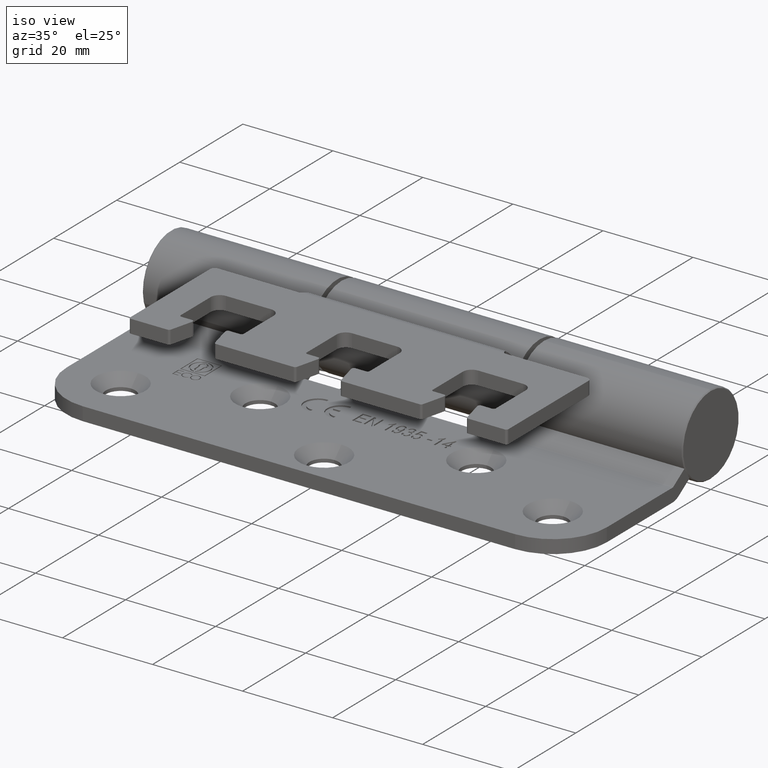
[diagram: clean part render]
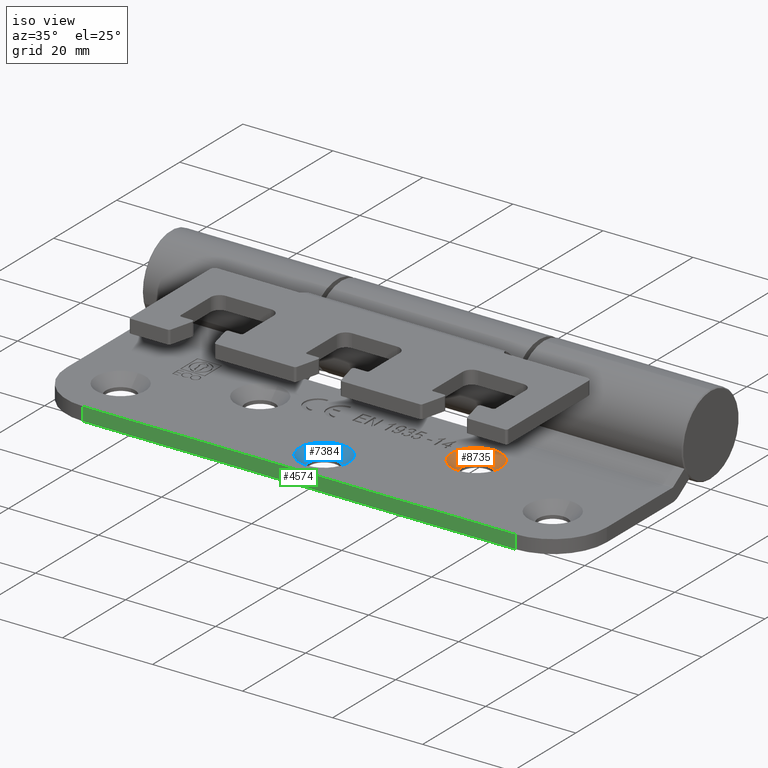
[diagram: same view with three faces highlighted in distinct colors, each labeled with its STEP entity id]
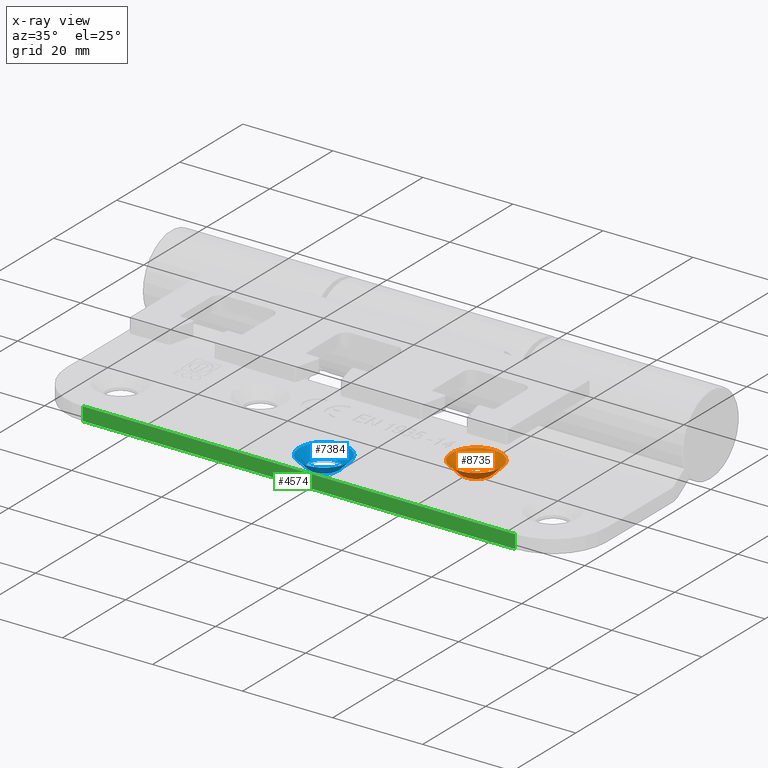
[diagram: x-ray of the same camera — body ghosted, the three highlighted faces saturated]
A machine part, iso view with three faces highlighted in distinct colors.
The next image is the same camera in x-ray (body ghosted, the three faces saturated) — at least one of them is partly hidden behind the body in this view.
Their STEP definitions:

[orange] entity #8735 — the highlighted conical surface has half-angle 45 deg.
#875 = DIRECTION ( 'NONE',  ( -1.000000000000000000, 9.244463733058650000E-032, -3.944304526105024000E-031 ) ) ;
#928 = FACE_BOUND ( 'NONE', #2644, .T. ) ;
#1008 = CARTESIAN_POINT ( 'NONE',  ( 6.000000000000062200, -23.99999999999999300, -17.50000000000005000 ) ) ;
#1312 = CIRCLE ( 'NONE', #11824, 5.500000000000046200 ) ;
#1412 = DIRECTION ( 'NONE',  ( 0.0000000000000000000, 0.0000000000000000000, 1.000000000000000000 ) ) ;
#2644 = EDGE_LOOP ( 'NONE', ( #6795 ) ) ;
#2681 = VERTEX_POINT ( 'NONE', #1008 ) ;
#3082 = DIRECTION ( 'NONE',  ( 0.0000000000000000000, 0.0000000000000000000, 1.000000000000000000 ) ) ;
#3707 = CARTESIAN_POINT ( 'NONE',  ( 6.000000000000062200, -23.99999999999999300, -23.00000000000009600 ) ) ;
#4011 = VERTEX_POINT ( 'NONE', #12204 ) ;
#4410 = CIRCLE ( 'NONE', #7014, 3.250000000000027100 ) ;
#5075 = EDGE_LOOP ( 'NONE', ( #11694 ) ) ;
#5294 = CARTESIAN_POINT ( 'NONE',  ( 8.250000000000042600, -24.00000000000000000, -23.00000000000016300 ) ) ;
#6795 = ORIENTED_EDGE ( 'NONE', *, *, #12178, .F. ) ;
#6884 = FACE_OUTER_BOUND ( 'NONE', #5075, .T. ) ;
#7014 = AXIS2_PLACEMENT_3D ( 'NONE', #5294, #14270, #8847 ) ;
#8645 = CARTESIAN_POINT ( 'NONE',  ( 6.000000000000062200, -23.99999999999999300, -23.00000000000009600 ) ) ;
#8735 = ADVANCED_FACE ( 'NONE', ( #928, #6884 ), #11047, .F. ) ;
#8847 = DIRECTION ( 'NONE',  ( 0.0000000000000000000, 0.0000000000000000000, 1.000000000000000000 ) ) ;
#10613 = EDGE_CURVE ( 'NONE', #2681, #2681, #1312, .T. ) ;
#11047 = CONICAL_SURFACE ( 'NONE', #12554, 5.500000000000046200, 0.7853981633974481700 ) ;
#11694 = ORIENTED_EDGE ( 'NONE', *, *, #10613, .T. ) ;
#11824 = AXIS2_PLACEMENT_3D ( 'NONE', #8645, #875, #3082 ) ;
#12178 = EDGE_CURVE ( 'NONE', #4011, #4011, #4410, .T. ) ;
#12204 = CARTESIAN_POINT ( 'NONE',  ( 8.250000000000042600, -24.00000000000000000, -19.75000000000013500 ) ) ;
#12554 = AXIS2_PLACEMENT_3D ( 'NONE', #3707, #13663, #1412 ) ;
#13663 = DIRECTION ( 'NONE',  ( -1.000000000000000000, 9.244463733058650000E-032, -3.944304526105024000E-031 ) ) ;
#14270 = DIRECTION ( 'NONE',  ( -1.000000000000000000, 9.244463733058650000E-032, -3.944304526105024000E-031 ) ) ;

[blue] entity #7384 — the highlighted conical surface has half-angle 45 deg.
#550 = AXIS2_PLACEMENT_3D ( 'NONE', #3821, #1753, #2747 ) ;
#1325 = FACE_BOUND ( 'NONE', #1536, .T. ) ;
#1536 = EDGE_LOOP ( 'NONE', ( #6615 ) ) ;
#1753 = DIRECTION ( 'NONE',  ( -1.000000000000000000, 9.244463733058650000E-032, -3.944304526105024000E-031 ) ) ;
#2470 = EDGE_CURVE ( 'NONE', #14435, #14435, #10759, .T. ) ;
#2747 = DIRECTION ( 'NONE',  ( 0.0000000000000000000, -5.168074059221379900E-031, 1.000000000000000000 ) ) ;
#2845 = ORIENTED_EDGE ( 'NONE', *, *, #2470, .T. ) ;
#3821 = CARTESIAN_POINT ( 'NONE',  ( 6.000000000000063900, 1.894633582790943300E-029, -37.00000000000029800 ) ) ;
#4522 = VERTEX_POINT ( 'NONE', #11104 ) ;
#4798 = DIRECTION ( 'NONE',  ( 0.0000000000000000000, -5.168074059221379900E-031, 1.000000000000000000 ) ) ;
#6167 = CARTESIAN_POINT ( 'NONE',  ( 6.000000000000063900, 1.894633582790943300E-029, -37.00000000000029800 ) ) ;
#6290 = EDGE_CURVE ( 'NONE', #4522, #4522, #7099, .T. ) ;
#6615 = ORIENTED_EDGE ( 'NONE', *, *, #6290, .F. ) ;
#7099 = CIRCLE ( 'NONE', #8284, 3.250000000000030600 ) ;
#7384 = ADVANCED_FACE ( 'NONE', ( #1325, #10195 ), #11438, .F. ) ;
#7435 = AXIS2_PLACEMENT_3D ( 'NONE', #6167, #9377, #12849 ) ;
#8284 = AXIS2_PLACEMENT_3D ( 'NONE', #13816, #11565, #4798 ) ;
#9377 = DIRECTION ( 'NONE',  ( -1.000000000000000000, 9.244463733058650000E-032, -3.944304526105024000E-031 ) ) ;
#10195 = FACE_OUTER_BOUND ( 'NONE', #10865, .T. ) ;
#10759 = CIRCLE ( 'NONE', #550, 5.500000000000046200 ) ;
#10865 = EDGE_LOOP ( 'NONE', ( #2845 ) ) ;
#11104 = CARTESIAN_POINT ( 'NONE',  ( 8.250000000000062200, 2.355005820222582600E-029, -33.75000000000025600 ) ) ;
#11438 = CONICAL_SURFACE ( 'NONE', #7435, 5.500000000000046200, 0.7853981633974485000 ) ;
#11565 = DIRECTION ( 'NONE',  ( -1.000000000000000000, 9.244463733058650000E-032, -3.944304526105024000E-031 ) ) ;
#12849 = DIRECTION ( 'NONE',  ( 0.0000000000000000000, -5.168074059221379900E-031, 1.000000000000000000 ) ) ;
#13816 = CARTESIAN_POINT ( 'NONE',  ( 8.250000000000062200, 2.522968227147279000E-029, -37.00000000000029100 ) ) ;
#13978 = CARTESIAN_POINT ( 'NONE',  ( 6.000000000000063900, 1.610389509533764900E-029, -31.50000000000024900 ) ) ;
#14435 = VERTEX_POINT ( 'NONE', #13978 ) ;

[green] entity #4574 — the highlighted planar face has unit normal (-0, -1, -0).
#266 = EDGE_CURVE ( 'NONE', #12123, #2980, #13503, .T. ) ;
#273 = CARTESIAN_POINT ( 'NONE',  ( 6.000000000000076400, 48.00000000000000700, -45.00000000000027700 ) ) ;
#1429 = VECTOR ( 'NONE', #10225, 1000.000000000000000 ) ;
#1808 = VECTOR ( 'NONE', #12129, 1000.000000000000000 ) ;
#1822 = CARTESIAN_POINT ( 'NONE',  ( 9.000000000000063900, -48.00000000000000000, -45.00000000000019900 ) ) ;
#2145 = LINE ( 'NONE', #3166, #9149 ) ;
#2154 = CARTESIAN_POINT ( 'NONE',  ( 6.000000000000068400, -47.99999999999999300, -45.00000000000029100 ) ) ;
#2194 = EDGE_LOOP ( 'NONE', ( #13154, #3095, #10985, #13391 ) ) ;
#2381 = DIRECTION ( 'NONE',  ( -1.000000000000000000, 9.244463733058650000E-032, -3.944304526105024000E-031 ) ) ;
#2980 = VERTEX_POINT ( 'NONE', #11919 ) ;
#2987 = LINE ( 'NONE', #5650, #1429 ) ;
#3095 = ORIENTED_EDGE ( 'NONE', *, *, #266, .T. ) ;
#3166 = CARTESIAN_POINT ( 'NONE',  ( 9.000000000000065700, 60.00000000000000000, -45.00000000000024200 ) ) ;
#3444 = EDGE_CURVE ( 'NONE', #9838, #12123, #2145, .T. ) ;
#3693 = CARTESIAN_POINT ( 'NONE',  ( 9.000000000000063900, 48.00000000000000000, -45.00000000000024900 ) ) ;
#3774 = CARTESIAN_POINT ( 'NONE',  ( 6.000000000000076400, 48.00000000000000700, -45.00000000000027700 ) ) ;
#4542 = EDGE_CURVE ( 'NONE', #8366, #2980, #2987, .T. ) ;
#4574 = ADVANCED_FACE ( 'NONE', ( #5095 ), #5846, .T. ) ;
#5095 = FACE_OUTER_BOUND ( 'NONE', #2194, .T. ) ;
#5650 = CARTESIAN_POINT ( 'NONE',  ( 6.000000000000063900, 60.00000000000000700, -45.00000000000024200 ) ) ;
#5846 = PLANE ( 'NONE',  #12332 ) ;
#6970 = CARTESIAN_POINT ( 'NONE',  ( 6.000000000000063900, 60.00000000000000700, -45.00000000000024200 ) ) ;
#6992 = DIRECTION ( 'NONE',  ( 1.000000000000000000, -9.244463733058650000E-032, 3.944304526105024000E-031 ) ) ;
#7648 = DIRECTION ( 'NONE',  ( 1.417484439069005600E-031, -1.000000000000000000, 4.058738411254377600E-031 ) ) ;
#7903 = DIRECTION ( 'NONE',  ( 3.944304526105024000E-031, 5.168074059221378200E-031, -1.000000000000000000 ) ) ;
#8366 = VERTEX_POINT ( 'NONE', #3774 ) ;
#9149 = VECTOR ( 'NONE', #7648, 1000.000000000000000 ) ;
#9838 = VERTEX_POINT ( 'NONE', #3693 ) ;
#9990 = LINE ( 'NONE', #273, #12047 ) ;
#10225 = DIRECTION ( 'NONE',  ( 1.417484439069005600E-031, -1.000000000000000000, 4.058738411254377600E-031 ) ) ;
#10985 = ORIENTED_EDGE ( 'NONE', *, *, #4542, .F. ) ;
#11919 = CARTESIAN_POINT ( 'NONE',  ( 6.000000000000068400, -47.99999999999999300, -45.00000000000029100 ) ) ;
#12047 = VECTOR ( 'NONE', #6992, 1000.000000000000000 ) ;
#12123 = VERTEX_POINT ( 'NONE', #1822 ) ;
#12129 = DIRECTION ( 'NONE',  ( -1.000000000000000000, 9.244463733058650000E-032, -3.944304526105024000E-031 ) ) ;
#12332 = AXIS2_PLACEMENT_3D ( 'NONE', #6970, #7903, #2381 ) ;
#12470 = EDGE_CURVE ( 'NONE', #8366, #9838, #9990, .T. ) ;
#13154 = ORIENTED_EDGE ( 'NONE', *, *, #3444, .T. ) ;
#13391 = ORIENTED_EDGE ( 'NONE', *, *, #12470, .T. ) ;
#13503 = LINE ( 'NONE', #2154, #1808 ) ;